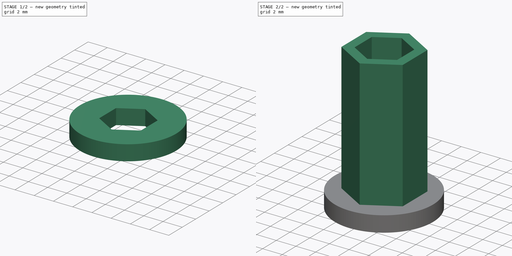
[diagram: build sequence overview — one tinted view per stage of 2, left to right]
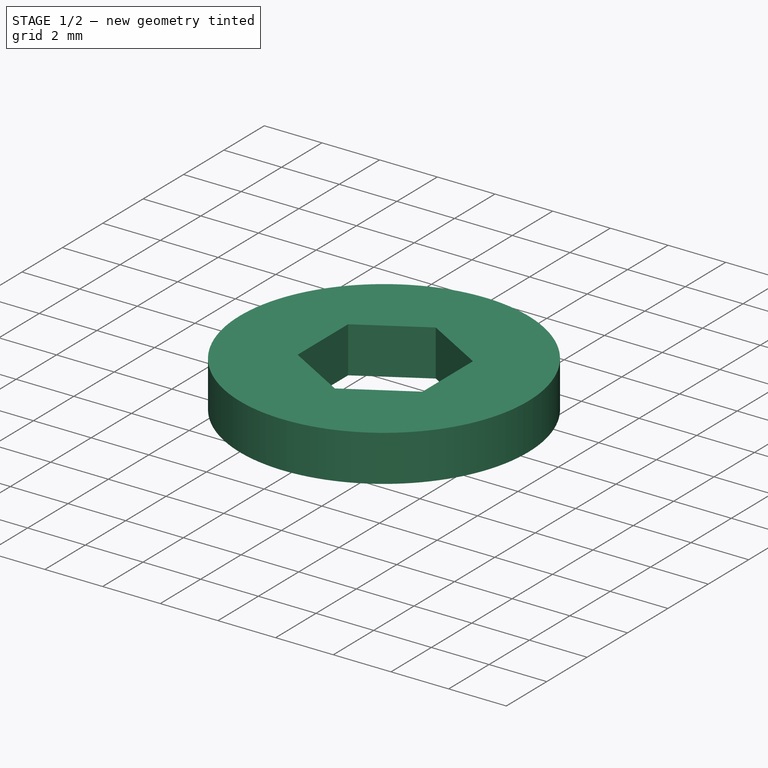
[diagram: stage 1 of 2 — iso view after this stage's code; geometry added in this stage tinted green]
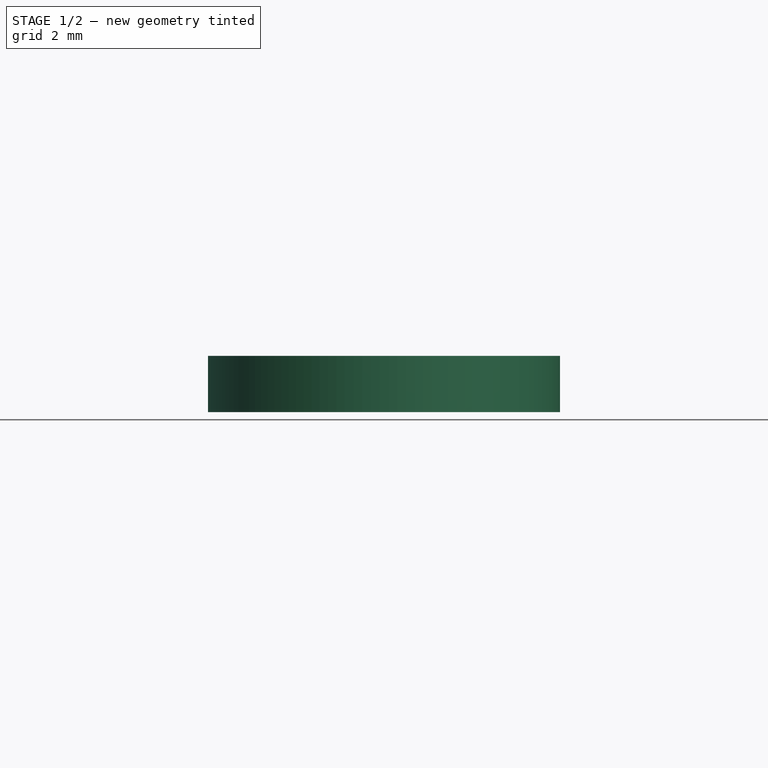
[diagram: stage 1 of 2 — front view after this stage's code; geometry added in this stage tinted green]
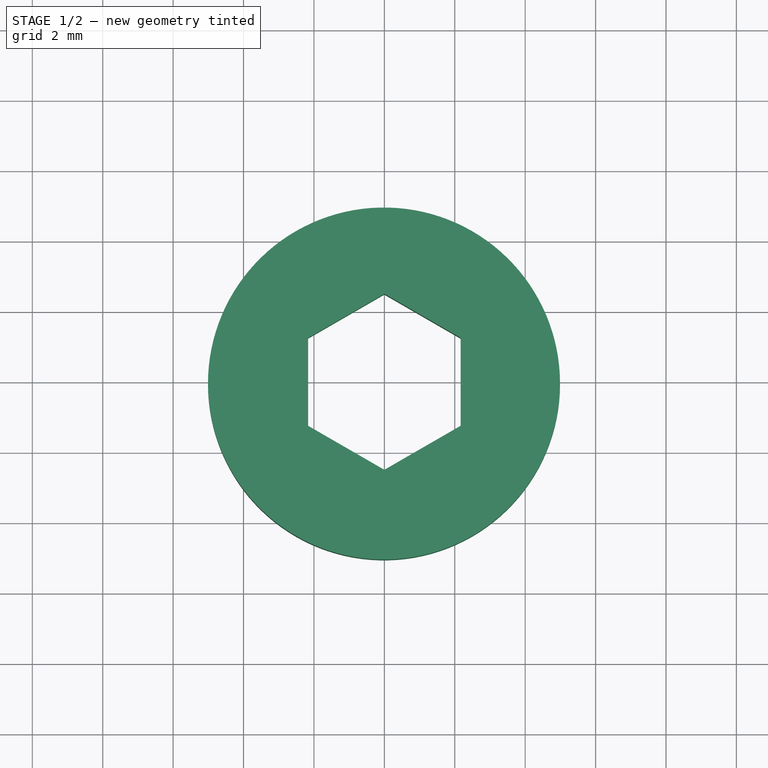
[diagram: stage 1 of 2 — top view after this stage's code; geometry added in this stage tinted green]
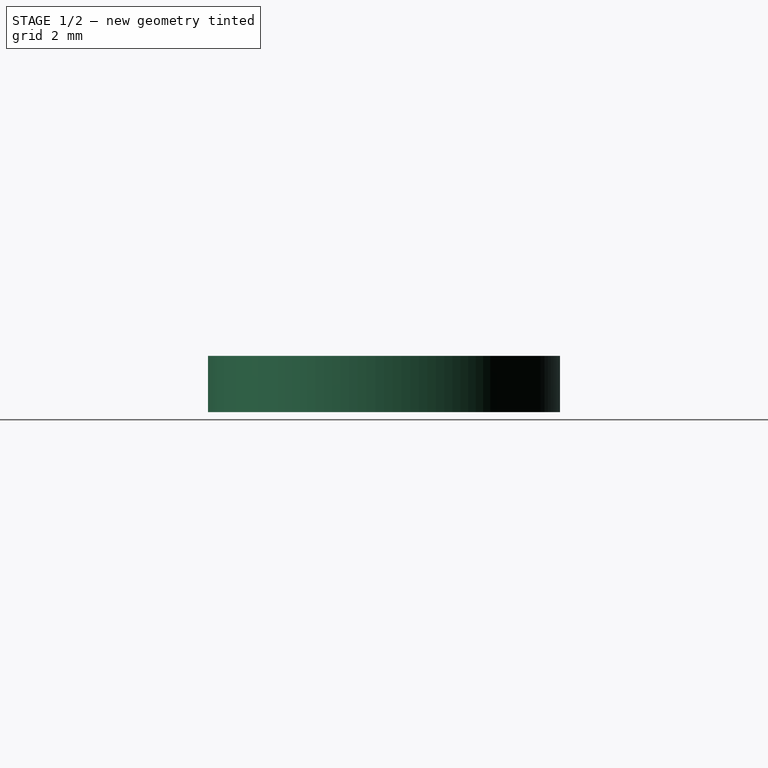
[diagram: stage 1 of 2 — right view after this stage's code; geometry added in this stage tinted green]
FCSTD DOCUMENT  (FreeCAD 0.16R)
Label: BitAdapter
License: All rights reserved
LicenseURL: http://en.wikipedia.org/wiki/All_rights_reserved
objects: Sketcher::SketchObject×2, PartDesign::Pad×2
note: 6 computed .brp shape members not serialized (recipe doc carries the construction recipe); baked Part::Feature solids carry a one-line shape summary decoded from their .brp

FEATURE [Sketcher::SketchObject] Sketch
  sketch-geometry (8):
    g0: LineSegment StartX=2.16506 StartY=-1.25 StartZ=0 EndX=2.16506 EndY=1.25 EndZ=0
    g1: LineSegment StartX=2.16506 StartY=1.25 StartZ=0 EndX=0 EndY=2.5 EndZ=0
    g2: LineSegment StartX=0 StartY=2.5 StartZ=0 EndX=-2.16506 EndY=1.25 EndZ=0
    g3: LineSegment StartX=-2.16506 StartY=1.25 StartZ=0 EndX=-2.16506 EndY=-1.25 EndZ=0
    g4: LineSegment StartX=-2.16506 StartY=-1.25 StartZ=0 EndX=0 EndY=-2.5 EndZ=0
    g5: LineSegment StartX=0 StartY=-2.5 StartZ=0 EndX=2.16506 EndY=-1.25 EndZ=0
    g6: Circle [constr] CenterX=0 CenterY=0 CenterZ=0 NormalX=0 NormalY=0 NormalZ=1 Radius=2.5
    g7: Circle CenterX=-0.010221 CenterY=-0.048828 CenterZ=0 NormalX=0 NormalY=0 NormalZ=1 Radius=5
  constraints (17):
    c: Coincident(g0,g1)
    c: Coincident(g1,g2)
    c: Coincident(g2,g3)
    c: Coincident(g3,g4)
    c: Coincident(g4,g5)
    c: Coincident(g5,g0)
    c: Equal(g0, g1-g5) x5
    c: PointOnObject(g0,g6)
    c: PointOnObject(g1,g6)
    c: PointOnObject(g2,g6)
    c: PointOnObject(g3,g6)
    c: PointOnObject(g4,g6)
    c: PointOnObject(g5,g6)
    c: Coincident(g6,g-1)
    c: Vertical(g0)
    c: Radius(g6) = 2.5
    c: Radius(g7) = 5
FEATURE [PartDesign::Pad] Pad
  Length = 1.6
  Length2 = 100
  Sketch = -> Sketch
  Type = 0
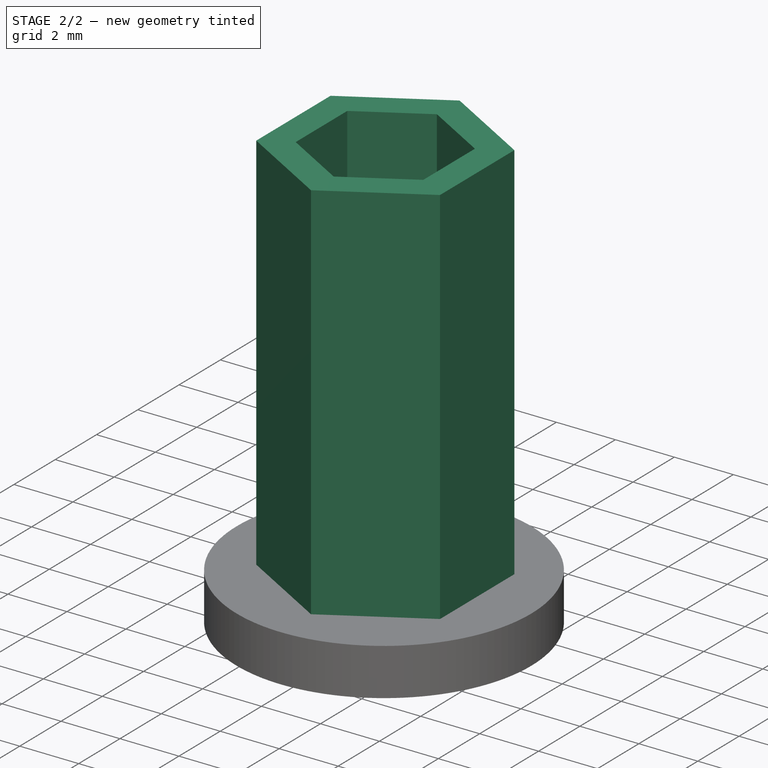
[diagram: stage 2 of 2 — iso view after this stage's code; geometry added in this stage tinted green]
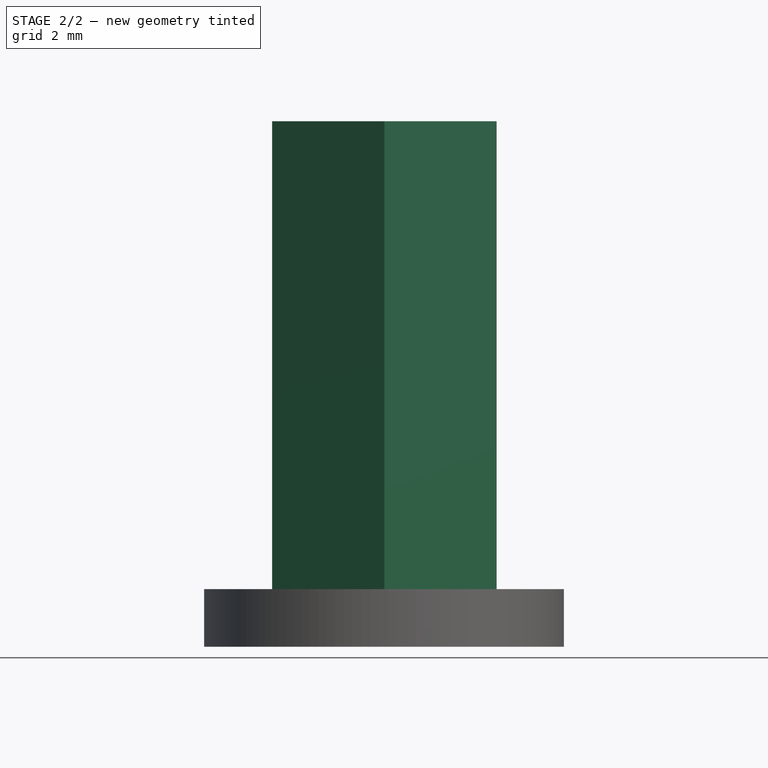
[diagram: stage 2 of 2 — front view after this stage's code; geometry added in this stage tinted green]
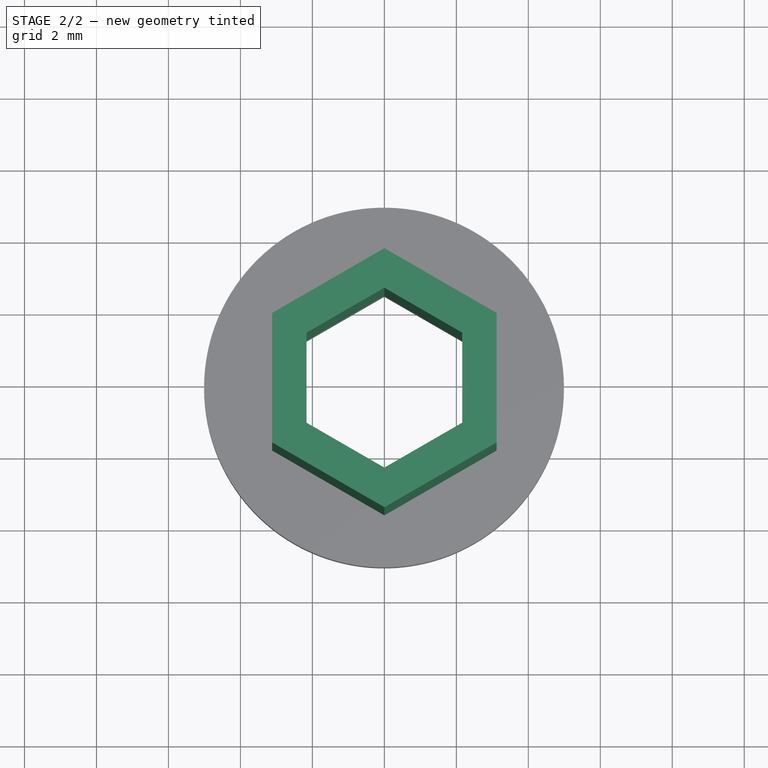
[diagram: stage 2 of 2 — top view after this stage's code; geometry added in this stage tinted green]
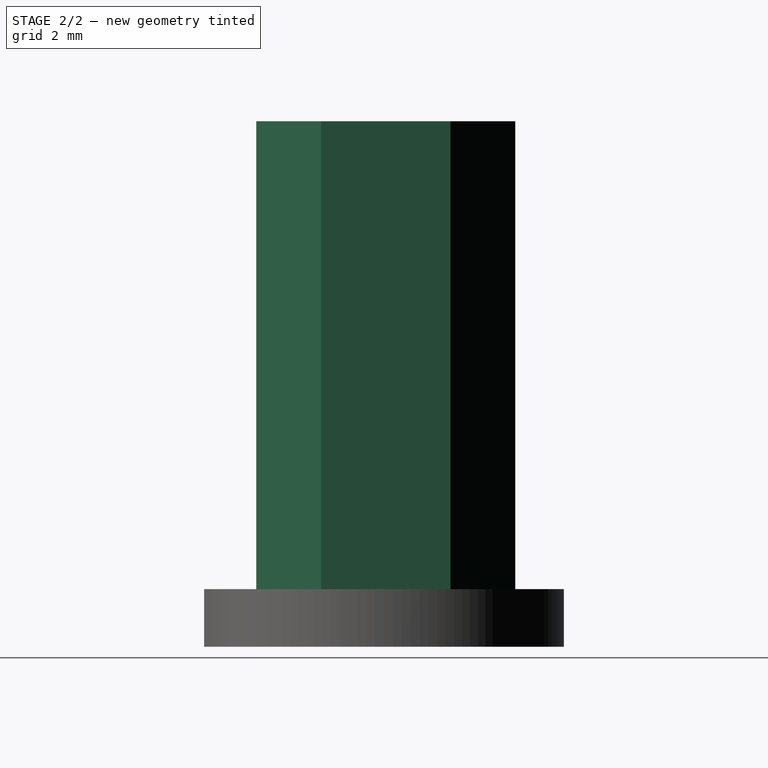
[diagram: stage 2 of 2 — right view after this stage's code; geometry added in this stage tinted green]
FEATURE [Sketcher::SketchObject] Sketch001
  Placement = pos=(0,0,1.6) rot=(0,0,1;0rad)
  Support = -> Pad [Face9]
  sketch-geometry (14):
    g0: LineSegment StartX=2.16506 StartY=-1.25 StartZ=0 EndX=2.16506 EndY=1.25 EndZ=0
    g1: LineSegment StartX=2.16506 StartY=1.25 StartZ=0 EndX=0 EndY=2.5 EndZ=0
    g2: LineSegment StartX=0 StartY=2.5 StartZ=0 EndX=-2.16506 EndY=1.25 EndZ=0
    g3: LineSegment StartX=-2.16506 StartY=1.25 StartZ=0 EndX=-2.16506 EndY=-1.25 EndZ=0
    g4: LineSegment StartX=-2.16506 StartY=-1.25 StartZ=0 EndX=0 EndY=-2.5 EndZ=0
    g5: LineSegment StartX=0 StartY=-2.5 StartZ=0 EndX=2.16506 EndY=-1.25 EndZ=0
    g6: Circle [constr] CenterX=0 CenterY=0 CenterZ=0 NormalX=0 NormalY=0 NormalZ=1 Radius=2.5
    g7: LineSegment StartX=3.11769 StartY=-1.8 StartZ=0 EndX=3.11769 EndY=1.8 EndZ=0
    g8: LineSegment StartX=3.11769 StartY=1.8 StartZ=0 EndX=0 EndY=3.6 EndZ=0
    g9: LineSegment StartX=0 StartY=3.6 StartZ=0 EndX=-3.11769 EndY=1.8 EndZ=0
    g10: LineSegment StartX=-3.11769 StartY=1.8 StartZ=0 EndX=-3.11769 EndY=-1.8 EndZ=0
    g11: LineSegment StartX=-3.11769 StartY=-1.8 StartZ=0 EndX=0 EndY=-3.6 EndZ=0
    g12: LineSegment StartX=0 StartY=-3.6 StartZ=0 EndX=3.11769 EndY=-1.8 EndZ=0
    g13: Circle [constr] CenterX=0 CenterY=0 CenterZ=0 NormalX=0 NormalY=0 NormalZ=1 Radius=3.6
  constraints (32):
    c: Coincident(g0,g1)
    c: Coincident(g1,g2)
    c: Coincident(g2,g3)
    c: Coincident(g3,g4)
    c: Coincident(g4,g5)
    c: Coincident(g5,g0)
    c: Equal(g0, g1-g5) x5
    c: PointOnObject(g0,g6)
    c: PointOnObject(g1,g6)
    c: PointOnObject(g2,g6)
    c: PointOnObject(g3,g6)
    c: PointOnObject(g4,g6)
    c: PointOnObject(g5,g6)
    c: Coincident(g6,g-1)
    c: Vertical(g0)
    c: Radius(g6) = 2.5
    c: Coincident(g7,g8)
    c: Coincident(g8,g9)
    c: Coincident(g9,g10)
    c: Coincident(g10,g11)
    c: Coincident(g11,g12)
    c: Coincident(g12,g7)
    c: Equal(g7, g8-g12) x5
    c: PointOnObject(g7,g13)
    c: PointOnObject(g8,g13)
    c: PointOnObject(g9,g13)
    c: PointOnObject(g10,g13)
    c: PointOnObject(g11,g13)
    c: PointOnObject(g12,g13)
    c: Coincident(g13,g-1)
    c: Vertical(g7)
    c: Radius(g13) = 3.6
FEATURE [PartDesign::Pad] Pad001
  Length = 13
  Length2 = 100
  Sketch = -> Sketch001
  Type = 0
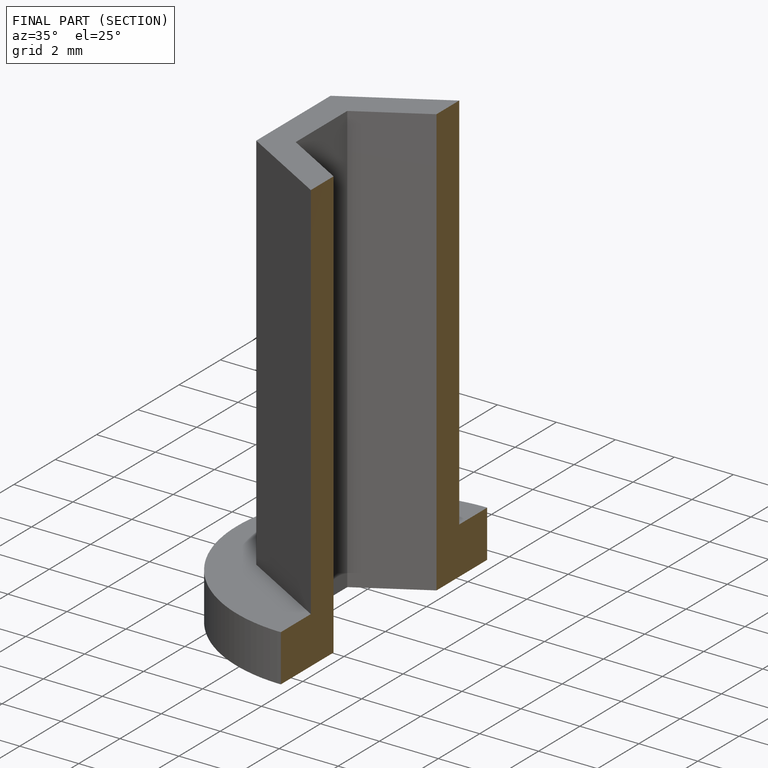
[diagram: finished part — half-section view (interior)]
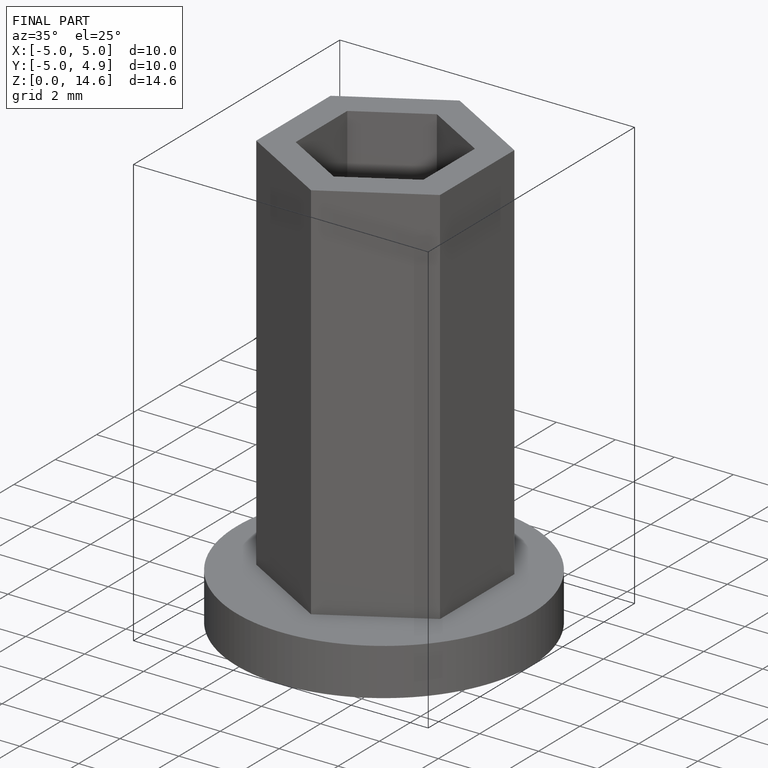
[diagram: finished part — iso view with bounding-box wireframe]
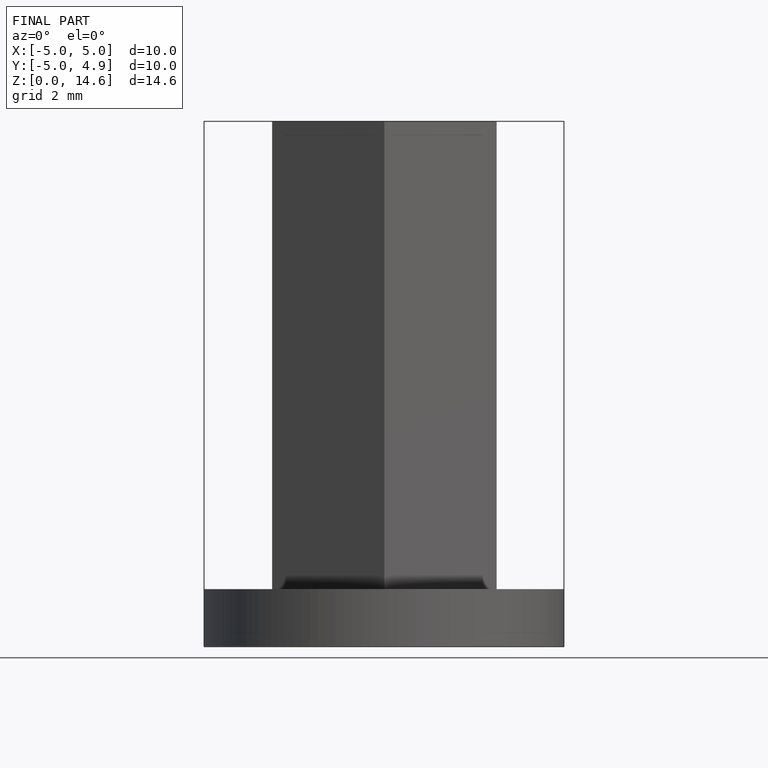
[diagram: finished part — front view with bounding-box wireframe]
